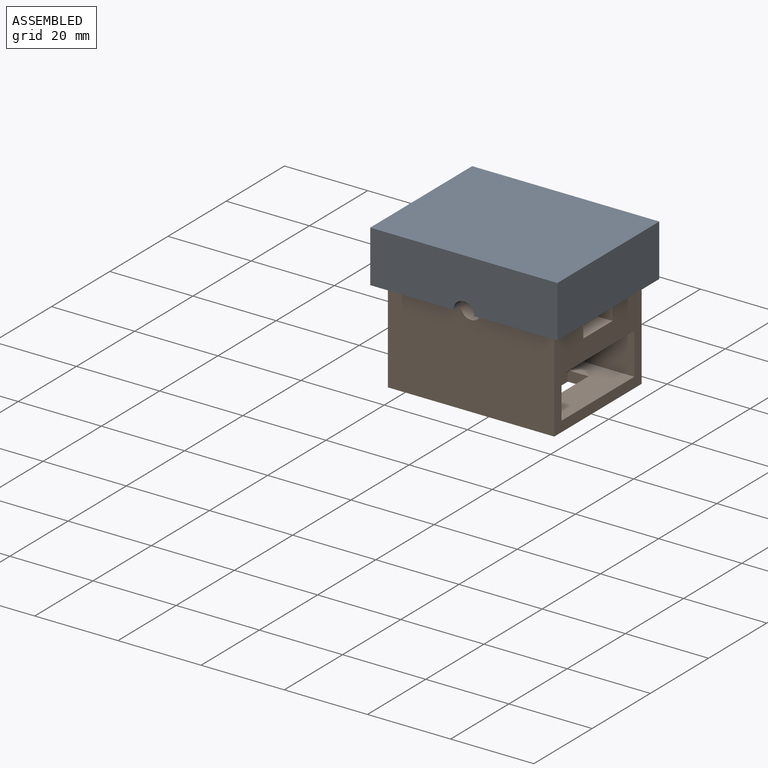
[diagram: assembled view]
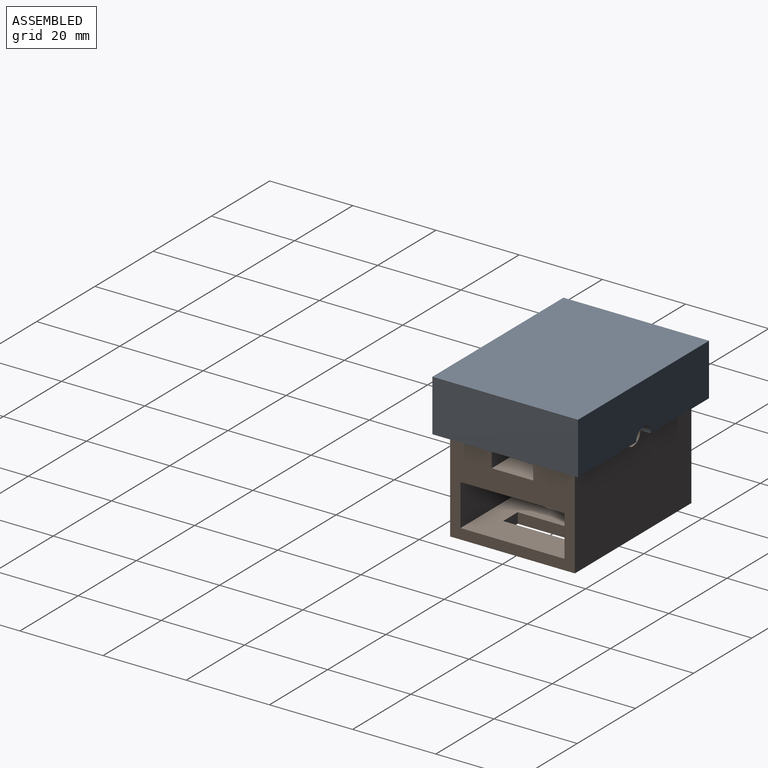
[diagram: assembled view, second angle]
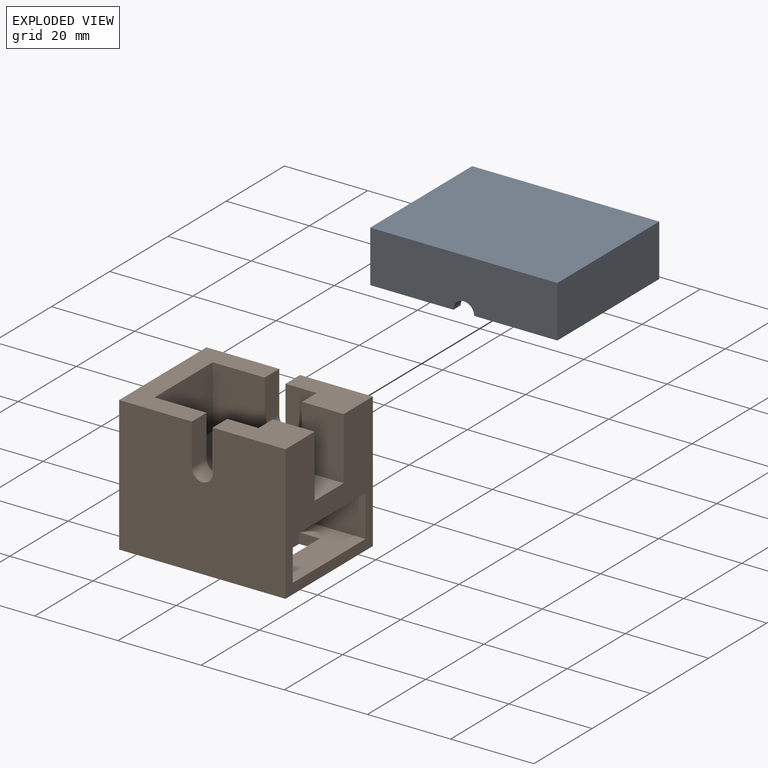
[diagram: exploded view]
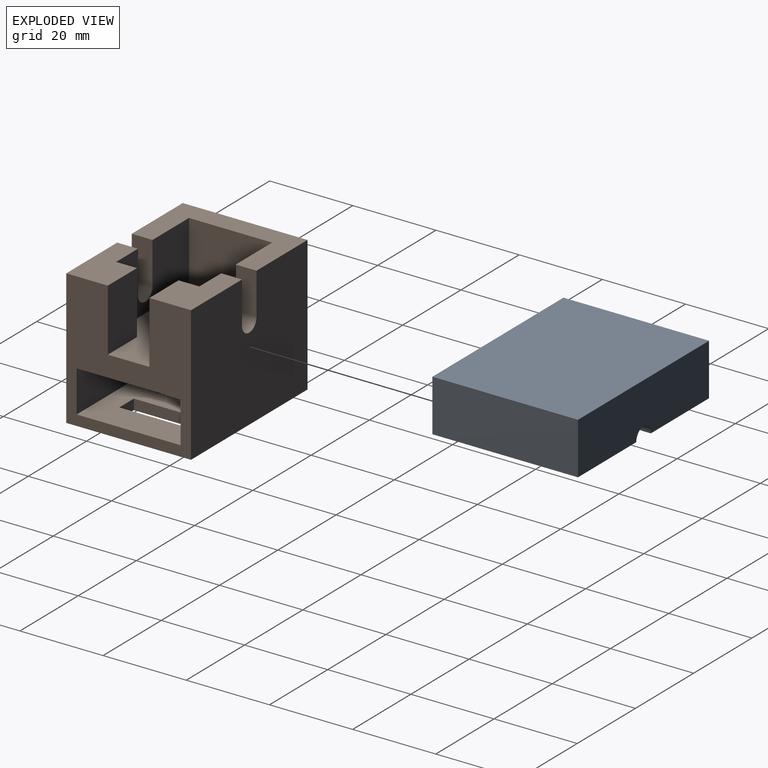
[diagram: exploded view, second angle]
ASSEMBLY  parts=2 mates=3
PART A: 14 faces, bbox 45x35x12.5 mm
  f0: plane 45x12.5mm, normal (0,-1,0), area 552.7mm2, adj f1,f3,f8,f9,f11,f13
  f1: plane 35x20mm, normal (0,0,1), area 175mm2, adj f0,f2,f3,f4,f5,f6,f12,f13
  f2: plane 45x12.5mm, normal (0,1,0), area 552.7mm2, adj f1,f3,f8,f9,f11,f12
  f3: plane 35x12.5mm, normal (-1,0,0), area 437.5mm2, adj f0,f1,f2,f11
  f4: plane 40x10mm, normal (0,1,0), area 390.2mm2, adj f1,f5,f7,f9,f10,f13
  f5: plane 30x10mm, normal (1,0,0), area 300mm2, adj f1,f4,f6,f10
  f6: plane 40x10mm, normal (0,-1,0), area 390.2mm2, adj f1,f5,f7,f9,f10,f12
  f7: plane 30x10mm, normal (-1,0,0), area 300mm2, adj f4,f6,f9,f10
  f8: plane 35x12.5mm, normal (1,0,0), area 437.5mm2, adj f0,f2,f9,f11
  f9: plane 35x20mm, normal (0,0,1), area 175mm2, adj f0,f2,f4,f6,f7,f8,f12,f13
  f10: plane 40x30mm, normal (0,0,1), area 1200mm2, adj f4,f5,f6,f7
  f11: plane 45x35mm, normal (0,0,-1), area 1575mm2, adj f0,f2,f3,f8
  f12: cylinder r=2.5mm len=5mm, axis (0,-1,0), area 19.6mm2, adj f1,f2,f6,f9
  f13: cylinder r=2.5mm len=5mm, axis (0,-1,0), area 19.6mm2, adj f0,f1,f4,f9
PART B: 43 faces, bbox 40x30x32.5 mm
  f0: plane 25x10mm, normal (1,0,0), area 175mm2, adj f2,f23,f24,f38,f39,f40,f41,f42
  f1: plane 32.5x30mm, normal (-1,0,0), area 900mm2, adj f5,f6,f9,f37,f39,f40,f41,f42
  f2: plane 37.5x25mm, normal (0,0,-1), area 937.5mm2, adj f0,f10,f23,f24
  f3: plane 17.5x10mm, normal (0,0,1), area 137.5mm2, adj f6,f7,f10,f13,f14,f22
  f4: plane 17.5x10mm, normal (0,0,1), area 137.5mm2, adj f5,f8,f10,f11,f12,f17
  f5: plane 40x32.5mm, normal (0,-1,0), area 1240.2mm2, adj f1,f4,f9,f10,f17,f18,f19,f37
  f6: plane 40x32.5mm, normal (0,1,0), area 1240.2mm2, adj f1,f3,f9,f10,f20,f21,f22,f37
  f7: plane 25x15mm, normal (0,-1,0), area 315.2mm2, adj f3,f9,f14,f15,f16,f20,f21,f22
  f8: plane 25x15mm, normal (0,1,0), area 315.2mm2, adj f4,f9,f11,f15,f16,f17,f18,f19
  f9: plane 30x17.5mm, normal (0,0,1), area 275mm2, adj f1,f5,f6,f7,f8,f15,f19,f20
  f10: plane 32.5x30mm, normal (1,0,0), area 575mm2, adj f2,f3,f4,f5,f6,f12,f13,f16
  f11: plane 15x5mm, normal (-1,0,0), area 75mm2, adj f4,f8,f12,f16
  f12: plane 15x10mm, normal (0,1,0), area 150mm2, adj f4,f10,f11,f16
  f13: plane 15x10mm, normal (0,-1,0), area 150mm2, adj f3,f10,f14,f16
  f14: plane 15x5mm, normal (-1,0,0), area 75mm2, adj f3,f7,f13,f16
  f15: plane 20x15mm, normal (1,0,0), area 300mm2, adj f7,f8,f9,f16
  f16: plane 35x20mm, normal (0,0,1), area 600mm2, adj f7,f8,f10,f11,f12,f13,f14,f15
  f17: plane 10x5mm, normal (-1,0,0), area 50mm2, adj f4,f5,f8,f18
  f18: cylinder r=2.5mm len=5mm, axis (0,-1,0), area 39.3mm2, adj f5,f8,f17,f19
  f19: plane 10x5mm, normal (1,0,0), area 50mm2, adj f5,f8,f9,f18
  f20: plane 10x5mm, normal (1,0,0), area 50mm2, adj f6,f7,f9,f21
  f21: cylinder r=2.5mm len=5mm, axis (0,-1,0), area 39.3mm2, adj f6,f7,f20,f22
  f22: plane 10x5mm, normal (-1,0,0), area 50mm2, adj f3,f6,f7,f21
  f23: plane 37.5x10mm, normal (0,-1,0), area 375mm2, adj f0,f2,f10,f38
  f24: plane 37.5x10mm, normal (0,1,0), area 375mm2, adj f0,f2,f10,f38
  f25: plane 15x2.5mm, normal (1,0,0), area 37.5mm2, adj f26,f36,f37,f38
  f26: plane 5x2.5mm, normal (0,1,0), area 12.5mm2, adj f25,f27,f37,f38
  f27: plane 15x2.5mm, normal (-1,0,0), area 37.5mm2, adj f26,f36,f37,f38
  f28: plane 15x2.5mm, normal (1,0,0), area 37.5mm2, adj f29,f34,f37,f38
  f29: plane 5x2.5mm, normal (0,1,0), area 12.5mm2, adj f28,f30,f37,f38
  f30: plane 15x2.5mm, normal (-1,0,0), area 37.5mm2, adj f29,f34,f37,f38
  f31: plane 15x2.5mm, normal (1,0,0), area 37.5mm2, adj f32,f35,f37,f38
  f32: plane 5x2.5mm, normal (0,1,0), area 12.5mm2, adj f31,f33,f37,f38
  f33: plane 15x2.5mm, normal (-1,0,0), area 37.5mm2, adj f32,f35,f37,f38
  f34: plane 5x2.5mm, normal (0,-1,0), area 12.5mm2, adj f28,f30,f37,f38
  f35: plane 5x2.5mm, normal (0,-1,0), area 12.5mm2, adj f31,f33,f37,f38
  f36: plane 5x2.5mm, normal (0,-1,0), area 12.5mm2, adj f25,f27,f37,f38
  f37: plane 40x30mm, normal (0,0,-1), area 975mm2, adj f1,f5,f6,f10,f25,f26,f27,f28
  f38: plane 37.5x25mm, normal (0,0,1), area 712.5mm2, adj f0,f10,f23,f24,f25,f26,f27,f28
  f39: plane 5x2.5mm, normal (0,-1,0), area 12.5mm2, adj f0,f1,f40,f42
  f40: plane 15x2.5mm, normal (0,0,-1), area 37.5mm2, adj f0,f1,f39,f41
  f41: plane 5x2.5mm, normal (0,1,0), area 12.5mm2, adj f0,f1,f40,f42
  f42: plane 15x2.5mm, normal (0,0,1), area 37.5mm2, adj f0,f1,f39,f41
PLACE A rot(axis=(0,1,0),180deg) t=(-58.12,0.75,20.26)mm
PLACE B t=(-40.18,0.41,0.26)mm
MATE planar A.f6 <-> B.f6  axis (0,-1,0) through (-51.64,15.41,10.26)mm
MATE planar A.f10 <-> B.f4  axis (0,0,-1) through (-62.89,0.41,20.26)mm
MATE planar A.f7 <-> B.f1  axis (1,0,0) through (-82.89,0.41,15.26)mm
